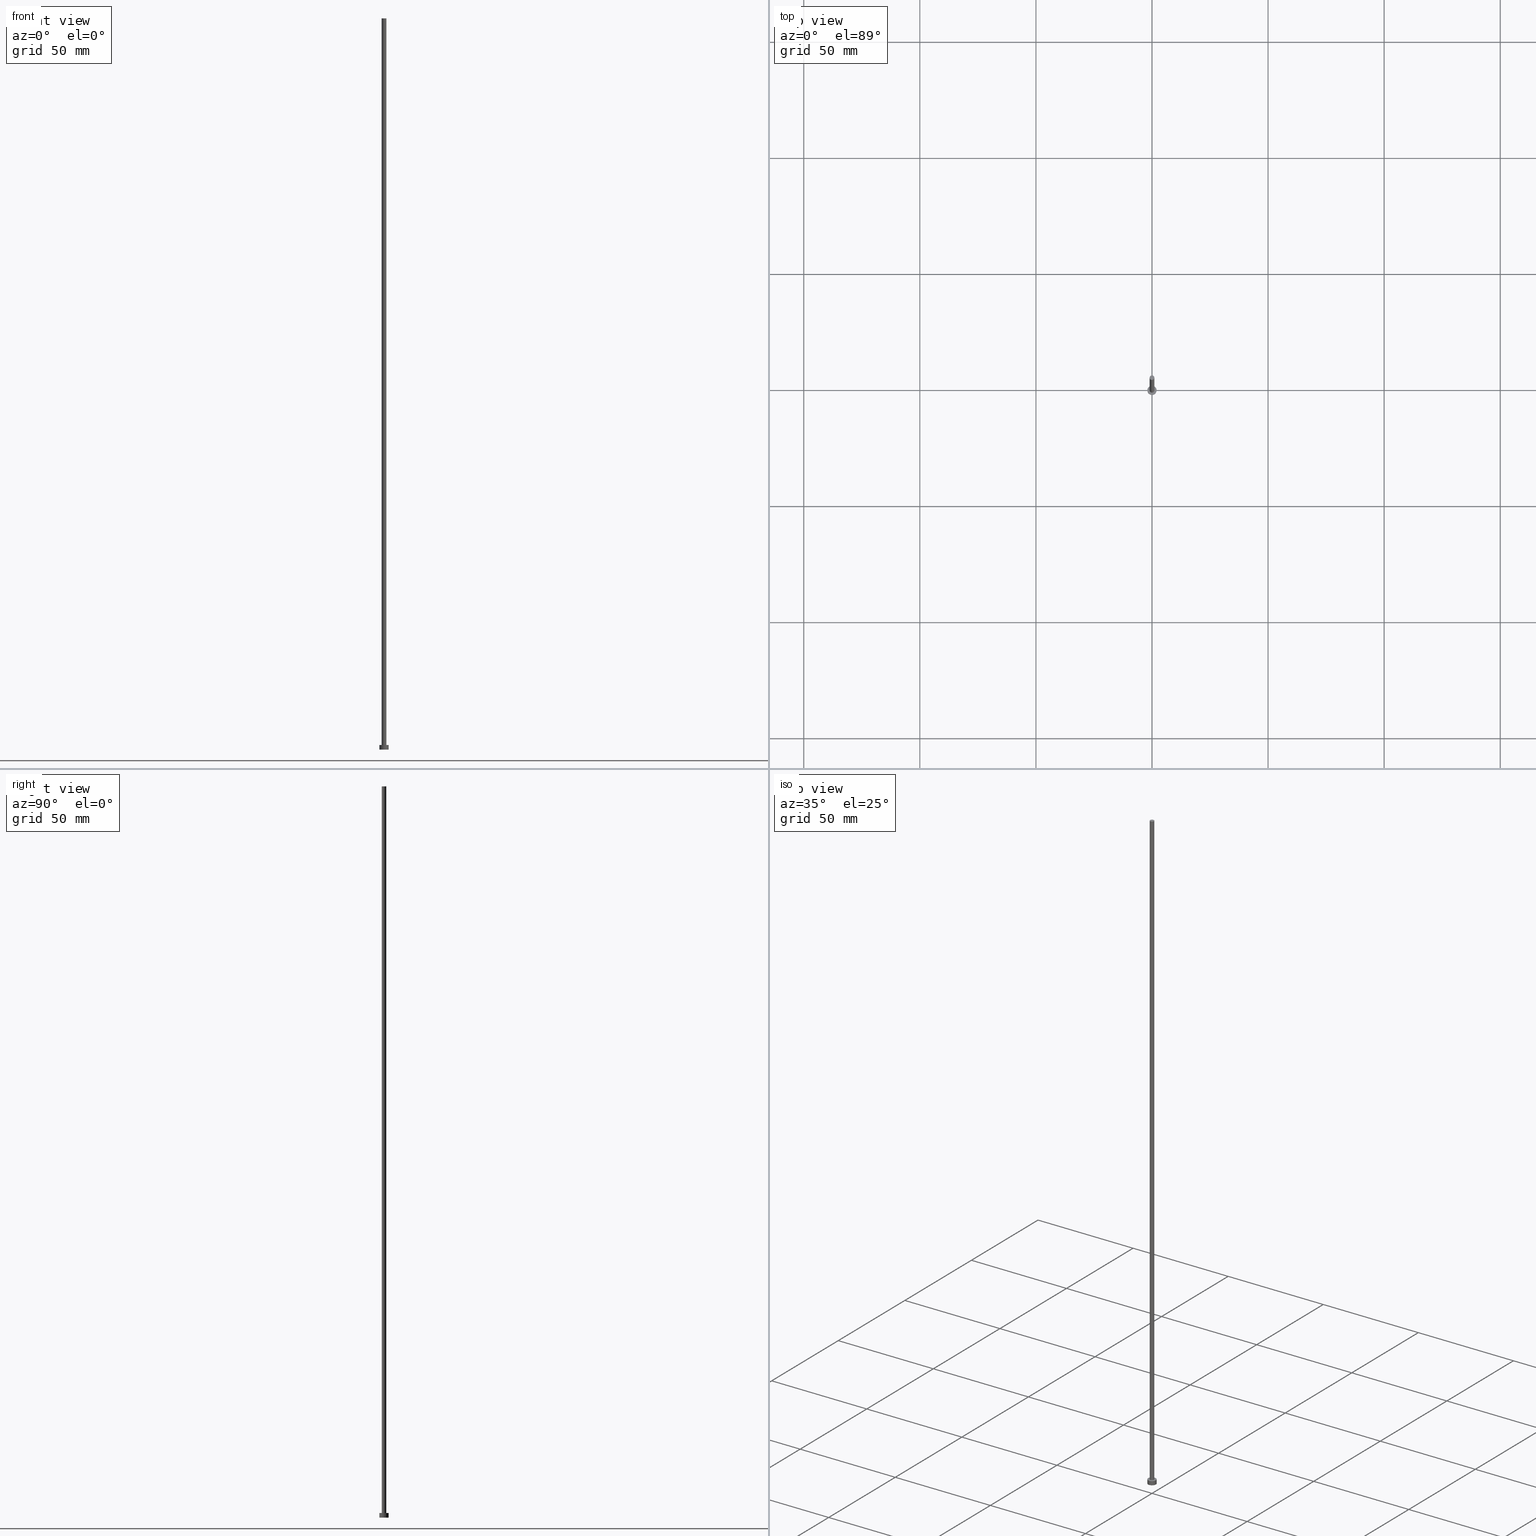
[diagram: canonical four-view strip — front | top / right | iso, engineering-drawing reading convention]
A machine part, canonical four-view strip (front | top / right | iso — engineering-drawing reading convention). The complete STEP part file that produces these views, byte-faithful:
ISO-10303-21;
HEADER;
FILE_DESCRIPTION (( 'STEP AP203' ),
    '1' );
FILE_NAME ('e824.STEP',
    '2023-02-13T16:43:06',
    ( '' ),
    ( '' ),
    'SwSTEP 2.0',
    'SolidWorks 2019',
    '' );
FILE_SCHEMA (( 'CONFIG_CONTROL_DESIGN' ));
ENDSEC;

DATA;
#1 = CARTESIAN_POINT ( 'NONE',  ( 2.000000000000000000, 2.449293598294706414E-16, 0.000000000000000000 ) ) ;
#2 = DATE_AND_TIME ( #201, #47 ) ;
#3 = PERSON_AND_ORGANIZATION ( #228, #78 ) ;
#4 = DIRECTION ( 'NONE',  ( -1.000000000000000000, 0.000000000000000000, 0.000000000000000000 ) ) ;
#5 = CARTESIAN_POINT ( 'NONE',  ( -1.000000000000000000, 0.000000000000000000, 2.000000000000000000 ) ) ;
#6 = DIRECTION ( 'NONE',  ( -0.000000000000000000, -0.000000000000000000, -1.000000000000000000 ) ) ;
#7 = CARTESIAN_POINT ( 'NONE',  ( 0.000000000000000000, 0.000000000000000000, 315.0000000000000000 ) ) ;
#8 = COORDINATED_UNIVERSAL_TIME_OFFSET ( 1, 0, .AHEAD. ) ;
#9 = FACE_OUTER_BOUND ( 'NONE', #252, .T. ) ;
#10 = APPROVAL ( #82, 'NEUR�EN�' ) ;
#11 = DIRECTION ( 'NONE',  ( 1.000000000000000000, 0.000000000000000000, 0.000000000000000000 ) ) ;
#12 = CARTESIAN_POINT ( 'NONE',  ( 0.000000000000000000, 0.000000000000000000, 315.0000000000000000 ) ) ;
#13 =( GEOMETRIC_REPRESENTATION_CONTEXT ( 3 ) GLOBAL_UNCERTAINTY_ASSIGNED_CONTEXT ( ( #147 ) ) GLOBAL_UNIT_ASSIGNED_CONTEXT ( ( #235, #190, #216 ) ) REPRESENTATION_CONTEXT ( 'NONE', 'WORKASPACE' ) );
#14 = VECTOR ( 'NONE', #86, 1000.000000000000000 ) ;
#15 = EDGE_CURVE ( 'NONE', #232, #218, #254, .T. ) ;
#16 = PERSON_AND_ORGANIZATION ( #228, #78 ) ;
#17 = VERTEX_POINT ( 'NONE', #1 ) ;
#18 = FACE_BOUND ( 'NONE', #217, .T. ) ;
#19 = ADVANCED_FACE ( 'NONE', ( #9 ), #56, .T. ) ;
#20 = ORIENTED_EDGE ( 'NONE', *, *, #44, .T. ) ;
#21 = FACE_OUTER_BOUND ( 'NONE', #58, .T. ) ;
#22 = VERTEX_POINT ( 'NONE', #5 ) ;
#23 = PERSON_AND_ORGANIZATION ( #228, #78 ) ;
#24 = VECTOR ( 'NONE', #64, 1000.000000000000000 ) ;
#25 = CIRCLE ( 'NONE', #169, 1.000000000000000000 ) ;
#26 = CARTESIAN_POINT ( 'NONE',  ( 0.000000000000000000, 0.000000000000000000, 0.000000000000000000 ) ) ;
#27 = VERTEX_POINT ( 'NONE', #80 ) ;
#28 = CARTESIAN_POINT ( 'NONE',  ( -1.000000000000000000, 0.000000000000000000, 315.0000000000000000 ) ) ;
#29 = CARTESIAN_POINT ( 'NONE',  ( 0.000000000000000000, 0.000000000000000000, 2.000000000000000000 ) ) ;
#30 = EDGE_CURVE ( 'NONE', #218, #232, #31, .T. ) ;
#31 = CIRCLE ( 'NONE', #91, 1.000000000000000000 ) ;
#32 = ADVANCED_BREP_SHAPE_REPRESENTATION ( 'e824', ( #226, #125 ), #13 ) ;
#33 = DIRECTION ( 'NONE',  ( 0.000000000000000000, 0.000000000000000000, 1.000000000000000000 ) ) ;
#34 = CALENDAR_DATE ( 2023, 13, 2 ) ;
#35 = EDGE_CURVE ( 'NONE', #38, #74, #239, .T. ) ;
#36 = CC_DESIGN_SECURITY_CLASSIFICATION ( #106, ( #193 ) ) ;
#37 = APPROVAL_ROLE ( '' ) ;
#38 = VERTEX_POINT ( 'NONE', #57 ) ;
#39 = DIRECTION ( 'NONE',  ( -0.000000000000000000, -0.000000000000000000, -1.000000000000000000 ) ) ;
#40 = DATE_AND_TIME ( #200, #155 ) ;
#41 = DIRECTION ( 'NONE',  ( 1.000000000000000000, 0.000000000000000000, 0.000000000000000000 ) ) ;
#42 = FACE_OUTER_BOUND ( 'NONE', #150, .T. ) ;
#43 = ORIENTED_EDGE ( 'NONE', *, *, #158, .T. ) ;
#44 = EDGE_CURVE ( 'NONE', #17, #27, #212, .T. ) ;
#45 = ORIENTED_EDGE ( 'NONE', *, *, #44, .F. ) ;
#46 = CC_DESIGN_PERSON_AND_ORGANIZATION_ASSIGNMENT ( #165, #241, ( #193 ) ) ;
#47 = LOCAL_TIME ( 17, 43, 6.000000000000000000, #204 ) ;
#48 = AXIS2_PLACEMENT_3D ( 'NONE', #26, #182, #143 ) ;
#49 = ADVANCED_FACE ( 'NONE', ( #42 ), #71, .T. ) ;
#50 = PERSON_AND_ORGANIZATION_ROLE ( 'design_owner' ) ;
#51 = VECTOR ( 'NONE', #244, 1000.000000000000000 ) ;
#52 = DIRECTION ( 'NONE',  ( 0.000000000000000000, 0.000000000000000000, 1.000000000000000000 ) ) ;
#53 = ORIENTED_EDGE ( 'NONE', *, *, #215, .T. ) ;
#54 = AXIS2_PLACEMENT_3D ( 'NONE', #121, #6, #222 ) ;
#55 = CC_DESIGN_PERSON_AND_ORGANIZATION_ASSIGNMENT ( #81, #167, ( #106 ) ) ;
#56 = CYLINDRICAL_SURFACE ( 'NONE', #54, 2.000000000000000000 ) ;
#57 = CARTESIAN_POINT ( 'NONE',  ( 2.000000000000000000, 2.449293598294706414E-16, 2.000000000000000000 ) ) ;
#58 = EDGE_LOOP ( 'NONE', ( #140, #92, #206, #214 ) ) ;
#59 = AXIS2_PLACEMENT_3D ( 'NONE', #97, #39, #4 ) ;
#60 = PERSON_AND_ORGANIZATION_ROLE ( 'design_supplier' ) ;
#61 = DIRECTION ( 'NONE',  ( 0.000000000000000000, 0.000000000000000000, 1.000000000000000000 ) ) ;
#62 = PRODUCT_DEFINITION_SHAPE ( 'NONE', 'NONE',  #238 ) ;
#63 = CC_DESIGN_PERSON_AND_ORGANIZATION_ASSIGNMENT ( #186, #60, ( #193 ) ) ;
#64 = DIRECTION ( 'NONE',  ( -0.000000000000000000, -0.000000000000000000, -1.000000000000000000 ) ) ;
#65 = CALENDAR_DATE ( 2023, 13, 2 ) ;
#66 = COORDINATED_UNIVERSAL_TIME_OFFSET ( 1, 0, .AHEAD. ) ;
#67 = PLANE ( 'NONE',  #90 ) ;
#68 = ORIENTED_EDGE ( 'NONE', *, *, #76, .F. ) ;
#69 = CIRCLE ( 'NONE', #129, 1.000000000000000000 ) ;
#70 = CARTESIAN_POINT ( 'NONE',  ( 0.000000000000000000, 0.000000000000000000, 2.000000000000000000 ) ) ;
#71 = CYLINDRICAL_SURFACE ( 'NONE', #164, 1.000000000000000000 ) ;
#72 = CARTESIAN_POINT ( 'NONE',  ( 0.000000000000000000, 0.000000000000000000, 2.000000000000000000 ) ) ;
#73 = CARTESIAN_POINT ( 'NONE',  ( -2.000000000000000000, 0.000000000000000000, 2.000000000000000000 ) ) ;
#74 = VERTEX_POINT ( 'NONE', #197 ) ;
#75 = ORIENTED_EDGE ( 'NONE', *, *, #102, .T. ) ;
#76 = EDGE_CURVE ( 'NONE', #27, #17, #194, .T. ) ;
#77 = APPROVAL_STATUS ( 'not_yet_approved' ) ;
#78 = ORGANIZATION ( 'NEUR�EN�', 'NEUR�EN�', '' ) ;
#79 = PLANE ( 'NONE',  #85 ) ;
#80 = CARTESIAN_POINT ( 'NONE',  ( -2.000000000000000000, 0.000000000000000000, 0.000000000000000000 ) ) ;
#81 = PERSON_AND_ORGANIZATION ( #228, #78 ) ;
#82 = APPROVAL_STATUS ( 'not_yet_approved' ) ;
#83 = APPROVAL ( #213, 'NEUR�EN�' ) ;
#84 = AXIS2_PLACEMENT_3D ( 'NONE', #12, #113, #100 ) ;
#85 = AXIS2_PLACEMENT_3D ( 'NONE', #199, #103, #137 ) ;
#86 = DIRECTION ( 'NONE',  ( -0.000000000000000000, -0.000000000000000000, -1.000000000000000000 ) ) ;
#87 = ORIENTED_EDGE ( 'NONE', *, *, #136, .T. ) ;
#88 = APPROVAL ( #77, 'NEUR�EN�' ) ;
#89 = ORIENTED_EDGE ( 'NONE', *, *, #116, .T. ) ;
#90 = AXIS2_PLACEMENT_3D ( 'NONE', #128, #255, #211 ) ;
#91 = AXIS2_PLACEMENT_3D ( 'NONE', #203, #104, #242 ) ;
#92 = ORIENTED_EDGE ( 'NONE', *, *, #102, .F. ) ;
#93 = DIRECTION ( 'NONE',  ( 1.000000000000000000, 0.000000000000000000, 0.000000000000000000 ) ) ;
#94 = ORIENTED_EDGE ( 'NONE', *, *, #208, .T. ) ;
#95 = ORIENTED_EDGE ( 'NONE', *, *, #116, .F. ) ;
#96 = APPROVAL_DATE_TIME ( #40, #83 ) ;
#97 = CARTESIAN_POINT ( 'NONE',  ( 0.000000000000000000, 0.000000000000000000, 2.000000000000000000 ) ) ;
#98 = ORIENTED_EDGE ( 'NONE', *, *, #15, .T. ) ;
#99 = VECTOR ( 'NONE', #187, 1000.000000000000000 ) ;
#100 = DIRECTION ( 'NONE',  ( -1.000000000000000000, 0.000000000000000000, 0.000000000000000000 ) ) ;
#101 = VERTEX_POINT ( 'NONE', #170 ) ;
#102 = EDGE_CURVE ( 'NONE', #74, #38, #130, .T. ) ;
#103 = DIRECTION ( 'NONE',  ( 0.000000000000000000, 0.000000000000000000, 1.000000000000000000 ) ) ;
#104 = DIRECTION ( 'NONE',  ( 0.000000000000000000, 0.000000000000000000, 1.000000000000000000 ) ) ;
#105 = ORIENTED_EDGE ( 'NONE', *, *, #15, .F. ) ;
#106 = SECURITY_CLASSIFICATION ( '', '', #141 ) ;
#107 = APPROVAL_PERSON_ORGANIZATION ( #231, #10, #209 ) ;
#108 = DIRECTION ( 'NONE',  ( 1.000000000000000000, 0.000000000000000000, 0.000000000000000000 ) ) ;
#109 = PRODUCT_RELATED_PRODUCT_CATEGORY ( 'detail', '', ( #202 ) ) ;
#110 = CYLINDRICAL_SURFACE ( 'NONE', #84, 1.000000000000000000 ) ;
#111 = LINE ( 'NONE', #151, #14 ) ;
#112 = CC_DESIGN_APPROVAL ( #10, ( #106 ) ) ;
#113 = DIRECTION ( 'NONE',  ( -0.000000000000000000, -0.000000000000000000, -1.000000000000000000 ) ) ;
#114 = AXIS2_PLACEMENT_3D ( 'NONE', #160, #177, #157 ) ;
#115 = EDGE_LOOP ( 'NONE', ( #75, #185 ) ) ;
#116 = EDGE_CURVE ( 'NONE', #232, #22, #247, .T. ) ;
#117 = APPLICATION_PROTOCOL_DEFINITION ( 'international standard', 'config_control_design', 1994, #198 ) ;
#118 = LINE ( 'NONE', #134, #24 ) ;
#119 = DIRECTION ( 'NONE',  ( 1.000000000000000000, 0.000000000000000000, -0.000000000000000000 ) ) ;
#120 = DIRECTION ( 'NONE',  ( -1.000000000000000000, 0.000000000000000000, 0.000000000000000000 ) ) ;
#121 = CARTESIAN_POINT ( 'NONE',  ( 0.000000000000000000, 0.000000000000000000, 2.000000000000000000 ) ) ;
#122 = ORIENTED_EDGE ( 'NONE', *, *, #215, .F. ) ;
#123 = ADVANCED_FACE ( 'NONE', ( #205 ), #79, .T. ) ;
#124 = DIRECTION ( 'NONE',  ( 0.000000000000000000, 0.000000000000000000, 1.000000000000000000 ) ) ;
#125 = AXIS2_PLACEMENT_3D ( 'NONE', #174, #250, #93 ) ;
#126 = DATE_AND_TIME ( #65, #227 ) ;
#127 = CC_DESIGN_DATE_AND_TIME_ASSIGNMENT ( #126, #210, ( #106 ) ) ;
#128 = CARTESIAN_POINT ( 'NONE',  ( 0.000000000000000000, 0.000000000000000000, 0.000000000000000000 ) ) ;
#129 = AXIS2_PLACEMENT_3D ( 'NONE', #159, #52, #41 ) ;
#130 = CIRCLE ( 'NONE', #207, 2.000000000000000000 ) ;
#131 = APPLICATION_PROTOCOL_DEFINITION ( 'international standard', 'config_control_design', 1994, #171 ) ;
#132 = PLANE ( 'NONE',  #156 ) ;
#133 = PERSON_AND_ORGANIZATION ( #228, #78 ) ;
#134 = CARTESIAN_POINT ( 'NONE',  ( 1.000000000000000000, 1.224646799147353207E-16, 315.0000000000000000 ) ) ;
#135 = EDGE_LOOP ( 'NONE', ( #122, #105, #89, #94 ) ) ;
#136 = EDGE_CURVE ( 'NONE', #38, #17, #111, .T. ) ;
#137 = DIRECTION ( 'NONE',  ( 1.000000000000000000, 0.000000000000000000, -0.000000000000000000 ) ) ;
#138 = CC_DESIGN_PERSON_AND_ORGANIZATION_ASSIGNMENT ( #16, #50, ( #202 ) ) ;
#139 = PERSON_AND_ORGANIZATION_ROLE ( 'creator' ) ;
#140 = ORIENTED_EDGE ( 'NONE', *, *, #136, .F. ) ;
#141 = SECURITY_CLASSIFICATION_LEVEL ( 'unclassified' ) ;
#142 = ADVANCED_FACE ( 'NONE', ( #18, #251 ), #132, .T. ) ;
#143 = DIRECTION ( 'NONE',  ( 1.000000000000000000, 0.000000000000000000, 0.000000000000000000 ) ) ;
#144 = COORDINATED_UNIVERSAL_TIME_OFFSET ( 1, 0, .AHEAD. ) ;
#145 = CLOSED_SHELL ( 'NONE', ( #49, #19, #178, #142, #249, #233, #123 ) ) ;
#146 = DIRECTION ( 'NONE',  ( 0.000000000000000000, 0.000000000000000000, 1.000000000000000000 ) ) ;
#147 = UNCERTAINTY_MEASURE_WITH_UNIT (LENGTH_MEASURE( 1.000000000000000082E-05 ), #235, 'distance_accuracy_value', 'NONE');
#148 = DATE_AND_TIME ( #34, #184 ) ;
#149 = LOCAL_TIME ( 17, 43, 6.000000000000000000, #8 ) ;
#150 = EDGE_LOOP ( 'NONE', ( #191, #53, #43, #95 ) ) ;
#151 = CARTESIAN_POINT ( 'NONE',  ( 2.000000000000000000, 2.449293598294706414E-16, 2.000000000000000000 ) ) ;
#152 = MECHANICAL_CONTEXT ( 'NONE', #198, 'mechanical' ) ;
#153 = DIRECTION ( 'NONE',  ( 1.000000000000000000, 0.000000000000000000, 0.000000000000000000 ) ) ;
#154 = ORIENTED_EDGE ( 'NONE', *, *, #158, .F. ) ;
#155 = LOCAL_TIME ( 17, 43, 6.000000000000000000, #192 ) ;
#156 = AXIS2_PLACEMENT_3D ( 'NONE', #225, #124, #119 ) ;
#157 = DIRECTION ( 'NONE',  ( 1.000000000000000000, 0.000000000000000000, 0.000000000000000000 ) ) ;
#158 = EDGE_CURVE ( 'NONE', #101, #22, #25, .T. ) ;
#159 = CARTESIAN_POINT ( 'NONE',  ( 0.000000000000000000, 0.000000000000000000, 2.000000000000000000 ) ) ;
#160 = CARTESIAN_POINT ( 'NONE',  ( 0.000000000000000000, 0.000000000000000000, 315.0000000000000000 ) ) ;
#161 = DIRECTION ( 'NONE',  ( 1.000000000000000000, 0.000000000000000000, 0.000000000000000000 ) ) ;
#162 = DATE_AND_TIME ( #181, #149 ) ;
#163 = DIRECTION ( 'NONE',  ( -0.000000000000000000, -0.000000000000000000, -1.000000000000000000 ) ) ;
#164 = AXIS2_PLACEMENT_3D ( 'NONE', #7, #163, #120 ) ;
#165 = PERSON_AND_ORGANIZATION ( #228, #78 ) ;
#166 = EDGE_LOOP ( 'NONE', ( #68, #45 ) ) ;
#167 = PERSON_AND_ORGANIZATION_ROLE ( 'classification_officer' ) ;
#168 = DESIGN_CONTEXT ( 'detailed design', #171, 'design' ) ;
#169 = AXIS2_PLACEMENT_3D ( 'NONE', #70, #196, #153 ) ;
#170 = CARTESIAN_POINT ( 'NONE',  ( 1.000000000000000000, 1.224646799147353207E-16, 2.000000000000000000 ) ) ;
#171 = APPLICATION_CONTEXT ( 'configuration controlled 3d designs of mechanical parts and assemblies' ) ;
#172 = FACE_OUTER_BOUND ( 'NONE', #135, .T. ) ;
#173 = APPROVAL_DATE_TIME ( #148, #10 ) ;
#174 = CARTESIAN_POINT ( 'NONE',  ( 0.000000000000000000, 0.000000000000000000, 0.000000000000000000 ) ) ;
#175 = AXIS2_PLACEMENT_3D ( 'NONE', #72, #61, #161 ) ;
#176 = ORIENTED_EDGE ( 'NONE', *, *, #35, .F. ) ;
#177 = DIRECTION ( 'NONE',  ( 0.000000000000000000, 0.000000000000000000, 1.000000000000000000 ) ) ;
#178 = ADVANCED_FACE ( 'NONE', ( #21 ), #234, .T. ) ;
#179 = EDGE_LOOP ( 'NONE', ( #98, #237 ) ) ;
#180 = LINE ( 'NONE', #73, #51 ) ;
#181 = CALENDAR_DATE ( 2023, 13, 2 ) ;
#182 = DIRECTION ( 'NONE',  ( 0.000000000000000000, 0.000000000000000000, 1.000000000000000000 ) ) ;
#183 = APPROVAL_ROLE ( '' ) ;
#184 = LOCAL_TIME ( 17, 43, 6.000000000000000000, #144 ) ;
#185 = ORIENTED_EDGE ( 'NONE', *, *, #35, .T. ) ;
#186 = PERSON_AND_ORGANIZATION ( #228, #78 ) ;
#187 = DIRECTION ( 'NONE',  ( -0.000000000000000000, -0.000000000000000000, -1.000000000000000000 ) ) ;
#188 = SHAPE_DEFINITION_REPRESENTATION ( #62, #32 ) ;
#189 = CC_DESIGN_APPROVAL ( #83, ( #238 ) ) ;
#190 =( NAMED_UNIT ( * ) PLANE_ANGLE_UNIT ( ) SI_UNIT ( $, .RADIAN. ) );
#191 = ORIENTED_EDGE ( 'NONE', *, *, #30, .F. ) ;
#192 = COORDINATED_UNIVERSAL_TIME_OFFSET ( 1, 0, .AHEAD. ) ;
#193 = PRODUCT_DEFINITION_FORMATION_WITH_SPECIFIED_SOURCE ( 'LIBOVOLN�', '', #202, .NOT_KNOWN. ) ;
#194 = CIRCLE ( 'NONE', #230, 2.000000000000000000 ) ;
#195 = CC_DESIGN_DATE_AND_TIME_ASSIGNMENT ( #2, #219, ( #238 ) ) ;
#196 = DIRECTION ( 'NONE',  ( 0.000000000000000000, 0.000000000000000000, 1.000000000000000000 ) ) ;
#197 = CARTESIAN_POINT ( 'NONE',  ( -2.000000000000000000, 0.000000000000000000, 2.000000000000000000 ) ) ;
#198 = APPLICATION_CONTEXT ( 'configuration controlled 3d designs of mechanical parts and assemblies' ) ;
#199 = CARTESIAN_POINT ( 'NONE',  ( 0.000000000000000000, 0.000000000000000000, 315.0000000000000000 ) ) ;
#200 = CALENDAR_DATE ( 2023, 13, 2 ) ;
#201 = CALENDAR_DATE ( 2023, 13, 2 ) ;
#202 = PRODUCT ( 'e824', 'e824', '', ( #152 ) ) ;
#203 = CARTESIAN_POINT ( 'NONE',  ( 0.000000000000000000, 0.000000000000000000, 315.0000000000000000 ) ) ;
#204 = COORDINATED_UNIVERSAL_TIME_OFFSET ( 1, 0, .AHEAD. ) ;
#205 = FACE_OUTER_BOUND ( 'NONE', #179, .T. ) ;
#206 = ORIENTED_EDGE ( 'NONE', *, *, #246, .T. ) ;
#207 = AXIS2_PLACEMENT_3D ( 'NONE', #29, #146, #108 ) ;
#208 = EDGE_CURVE ( 'NONE', #22, #101, #69, .T. ) ;
#209 = APPROVAL_ROLE ( '' ) ;
#210 = DATE_TIME_ROLE ( 'classification_date' ) ;
#211 = DIRECTION ( 'NONE',  ( 1.000000000000000000, 0.000000000000000000, -0.000000000000000000 ) ) ;
#212 = CIRCLE ( 'NONE', #48, 2.000000000000000000 ) ;
#213 = APPROVAL_STATUS ( 'not_yet_approved' ) ;
#214 = ORIENTED_EDGE ( 'NONE', *, *, #76, .T. ) ;
#215 = EDGE_CURVE ( 'NONE', #218, #101, #118, .T. ) ;
#216 =( NAMED_UNIT ( * ) SI_UNIT ( $, .STERADIAN. ) SOLID_ANGLE_UNIT ( ) );
#217 = EDGE_LOOP ( 'NONE', ( #248, #154 ) ) ;
#218 = VERTEX_POINT ( 'NONE', #236 ) ;
#219 = DATE_TIME_ROLE ( 'creation_date' ) ;
#220 = APPROVAL_PERSON_ORGANIZATION ( #23, #88, #183 ) ;
#221 = CARTESIAN_POINT ( 'NONE',  ( -1.000000000000000000, 0.000000000000000000, 315.0000000000000000 ) ) ;
#222 = DIRECTION ( 'NONE',  ( -1.000000000000000000, 0.000000000000000000, 0.000000000000000000 ) ) ;
#223 = APPROVAL_DATE_TIME ( #162, #88 ) ;
#224 = ORIENTED_EDGE ( 'NONE', *, *, #246, .F. ) ;
#225 = CARTESIAN_POINT ( 'NONE',  ( 0.000000000000000000, 0.000000000000000000, 2.000000000000000000 ) ) ;
#226 = MANIFOLD_SOLID_BREP ( 'P�idat vysunut�m3', #145 ) ;
#227 = LOCAL_TIME ( 17, 43, 6.000000000000000000, #66 ) ;
#228 = PERSON ( 'NEUR�EN�', 'NEUR�EN�', 'NEUR�EN�', ('NEUR�EN�'), ('NEUR�EN�'), ('NEUR�EN�') ) ;
#229 = CC_DESIGN_APPROVAL ( #88, ( #193 ) ) ;
#230 = AXIS2_PLACEMENT_3D ( 'NONE', #240, #33, #11 ) ;
#231 = PERSON_AND_ORGANIZATION ( #228, #78 ) ;
#232 = VERTEX_POINT ( 'NONE', #221 ) ;
#233 = ADVANCED_FACE ( 'NONE', ( #172 ), #110, .T. ) ;
#234 = CYLINDRICAL_SURFACE ( 'NONE', #59, 2.000000000000000000 ) ;
#235 =( LENGTH_UNIT ( ) NAMED_UNIT ( * ) SI_UNIT ( .MILLI., .METRE. ) );
#236 = CARTESIAN_POINT ( 'NONE',  ( 1.000000000000000000, 1.224646799147353207E-16, 315.0000000000000000 ) ) ;
#237 = ORIENTED_EDGE ( 'NONE', *, *, #30, .T. ) ;
#238 = PRODUCT_DEFINITION ( 'NEZN�M�', '', #193, #168 ) ;
#239 = CIRCLE ( 'NONE', #175, 2.000000000000000000 ) ;
#240 = CARTESIAN_POINT ( 'NONE',  ( 0.000000000000000000, 0.000000000000000000, 0.000000000000000000 ) ) ;
#241 = PERSON_AND_ORGANIZATION_ROLE ( 'creator' ) ;
#242 = DIRECTION ( 'NONE',  ( 1.000000000000000000, 0.000000000000000000, 0.000000000000000000 ) ) ;
#243 = CC_DESIGN_PERSON_AND_ORGANIZATION_ASSIGNMENT ( #3, #139, ( #238 ) ) ;
#244 = DIRECTION ( 'NONE',  ( -0.000000000000000000, -0.000000000000000000, -1.000000000000000000 ) ) ;
#245 = FACE_OUTER_BOUND ( 'NONE', #166, .T. ) ;
#246 = EDGE_CURVE ( 'NONE', #74, #27, #180, .T. ) ;
#247 = LINE ( 'NONE', #28, #99 ) ;
#248 = ORIENTED_EDGE ( 'NONE', *, *, #208, .F. ) ;
#249 = ADVANCED_FACE ( 'NONE', ( #245 ), #67, .F. ) ;
#250 = DIRECTION ( 'NONE',  ( 0.000000000000000000, 0.000000000000000000, 1.000000000000000000 ) ) ;
#251 = FACE_OUTER_BOUND ( 'NONE', #115, .T. ) ;
#252 = EDGE_LOOP ( 'NONE', ( #176, #87, #20, #224 ) ) ;
#253 = APPROVAL_PERSON_ORGANIZATION ( #133, #83, #37 ) ;
#254 = CIRCLE ( 'NONE', #114, 1.000000000000000000 ) ;
#255 = DIRECTION ( 'NONE',  ( 0.000000000000000000, 0.000000000000000000, 1.000000000000000000 ) ) ;
ENDSEC;
END-ISO-10303-21;
